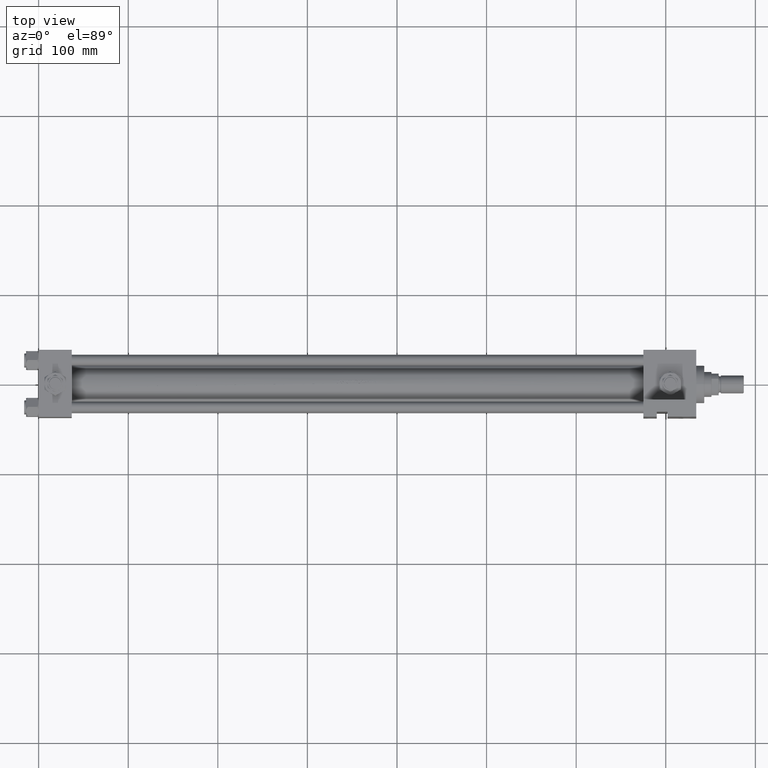
[diagram: clean part render]
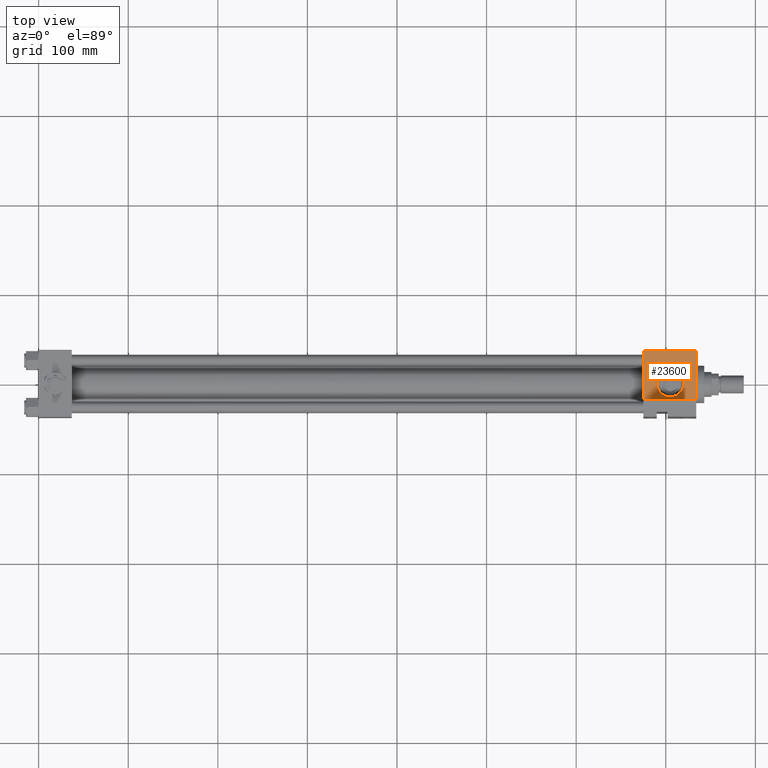
[diagram: same view with one face highlighted and labeled with its STEP entity id]
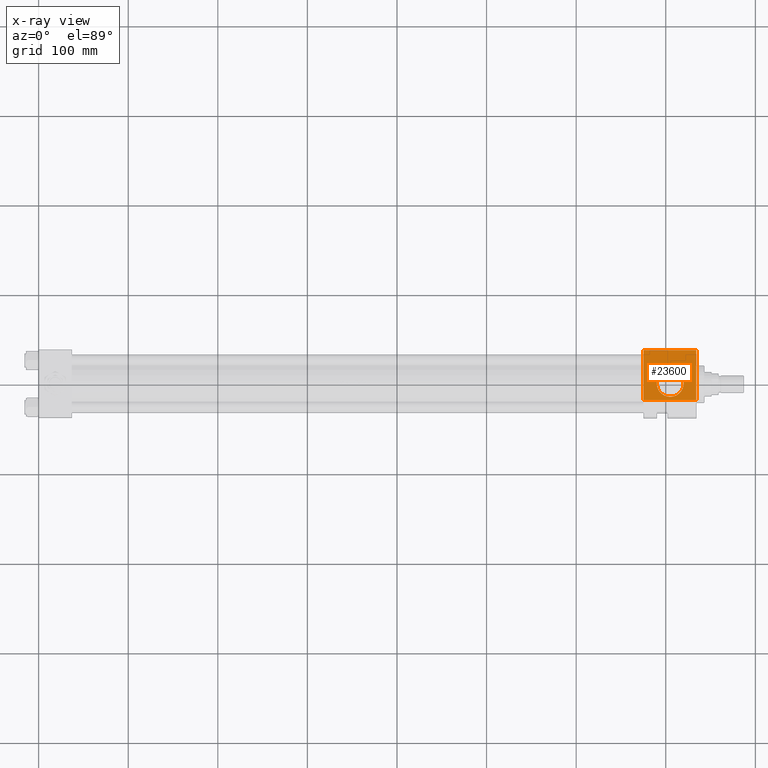
[diagram: x-ray of the same camera — body ghosted, the highlighted face saturated]
A machine part, top view. The second image highlights one B-rep face of the part: STEP entity #23600.
The next image is the same camera in x-ray: the body ghosted, the highlighted face saturated — about 0% of this face is hidden behind the body in this view.
In plain terms, the highlighted planar face has unit normal (0, -0, -1).
Its self-contained STEP definition (entity closure, byte-faithful):
#302 = ORIENTED_EDGE ( 'NONE', *, *, #46928, .F. ) ;
#2561 = PLANE ( 'NONE',  #3971 ) ;
#3924 = VERTEX_POINT ( 'NONE', #33499 ) ;
#3971 = AXIS2_PLACEMENT_3D ( 'NONE', #6862, #48476, #10191 ) ;
#4580 = AXIS2_PLACEMENT_3D ( 'NONE', #14339, #49070, #29782 ) ;
#4784 = VERTEX_POINT ( 'NONE', #9200 ) ;
#5316 = CIRCLE ( 'NONE', #49847, 15.00000000000002487 ) ;
#6278 = ORIENTED_EDGE ( 'NONE', *, *, #42126, .T. ) ;
#6349 = EDGE_LOOP ( 'NONE', ( #302, #40586, #6278, #32018 ) ) ;
#6391 = DIRECTION ( 'NONE',  ( 1.000000000000000000, -1.176083712526650181E-16, 0.000000000000000000 ) ) ;
#6862 = CARTESIAN_POINT ( 'NONE',  ( 734.0000000000000000, -37.50000000000000000, 37.49999999999997868 ) ) ;
#7649 = CARTESIAN_POINT ( 'NONE',  ( 675.0000000000000000, -37.50000000000000000, 36.99999999999980815 ) ) ;
#9200 = CARTESIAN_POINT ( 'NONE',  ( 705.0000000000001137, -37.50000000000000000, -15.00000000000002132 ) ) ;
#10191 = DIRECTION ( 'NONE',  ( 0.000000000000000000, 9.251858538542972814E-17, 1.000000000000000000 ) ) ;
#10271 = CIRCLE ( 'NONE', #4580, 15.00000000000002487 ) ;
#11638 = EDGE_CURVE ( 'NONE', #4784, #41572, #5316, .T. ) ;
#11934 = DIRECTION ( 'NONE',  ( -1.000000000000000000, 0.000000000000000000, 0.000000000000000000 ) ) ;
#13768 = CARTESIAN_POINT ( 'NONE',  ( 675.0000000000000000, -37.50000000000000000, -18.50000000000000000 ) ) ;
#13863 = EDGE_CURVE ( 'NONE', #41572, #4784, #10271, .T. ) ;
#14141 = VERTEX_POINT ( 'NONE', #7649 ) ;
#14339 = CARTESIAN_POINT ( 'NONE',  ( 705.0000000000001137, -37.50000000000000000, 3.469446951953615767E-15 ) ) ;
#17055 = LINE ( 'NONE', #39606, #40272 ) ;
#17672 = EDGE_LOOP ( 'NONE', ( #33220, #46630 ) ) ;
#21058 = EDGE_CURVE ( 'NONE', #3924, #27090, #33017, .T. ) ;
#21339 = CARTESIAN_POINT ( 'NONE',  ( 675.0000000000000000, -37.50000000000000000, 37.49999999999997868 ) ) ;
#22581 = LINE ( 'NONE', #30682, #38108 ) ;
#23443 = CARTESIAN_POINT ( 'NONE',  ( 734.0000000000000000, -37.50000000000000711, -18.50000000000000355 ) ) ;
#23600 = ADVANCED_FACE ( 'NONE', ( #44911, #49216 ), #2561, .F. ) ;
#23809 = EDGE_CURVE ( 'NONE', #40382, #14141, #22581, .T. ) ;
#24313 = CARTESIAN_POINT ( 'NONE',  ( 705.0000000000001137, -37.50000000000000000, 15.00000000000002842 ) ) ;
#24640 = DIRECTION ( 'NONE',  ( 0.000000000000000000, -9.251858538542972814E-17, -1.000000000000000000 ) ) ;
#26074 = CARTESIAN_POINT ( 'NONE',  ( 705.0000000000001137, -37.50000000000000000, 3.469446951953615767E-15 ) ) ;
#26422 = CARTESIAN_POINT ( 'NONE',  ( 734.0000000000000000, -37.50000000000000000, 36.99999999999980815 ) ) ;
#27090 = VERTEX_POINT ( 'NONE', #23443 ) ;
#27120 = VECTOR ( 'NONE', #44912, 1000.000000000000000 ) ;
#29437 = LINE ( 'NONE', #21339, #27120 ) ;
#29782 = DIRECTION ( 'NONE',  ( 0.000000000000000000, 0.000000000000000000, -1.000000000000000000 ) ) ;
#30682 = CARTESIAN_POINT ( 'NONE',  ( 734.0000000000000000, -37.50000000000000000, 36.99999999999980815 ) ) ;
#32018 = ORIENTED_EDGE ( 'NONE', *, *, #21058, .T. ) ;
#33017 = LINE ( 'NONE', #13768, #33966 ) ;
#33220 = ORIENTED_EDGE ( 'NONE', *, *, #11638, .F. ) ;
#33499 = CARTESIAN_POINT ( 'NONE',  ( 675.0000000000000000, -37.50000000000000000, -18.50000000000000000 ) ) ;
#33966 = VECTOR ( 'NONE', #6391, 1000.000000000000000 ) ;
#34437 = DIRECTION ( 'NONE',  ( 0.000000000000000000, -1.000000000000000000, -8.673617379884036705E-17 ) ) ;
#38108 = VECTOR ( 'NONE', #11934, 1000.000000000000000 ) ;
#39606 = CARTESIAN_POINT ( 'NONE',  ( 734.0000000000000000, -37.50000000000000000, 37.49999999999997868 ) ) ;
#40272 = VECTOR ( 'NONE', #24640, 1000.000000000000000 ) ;
#40382 = VERTEX_POINT ( 'NONE', #26422 ) ;
#40586 = ORIENTED_EDGE ( 'NONE', *, *, #23809, .T. ) ;
#41549 = DIRECTION ( 'NONE',  ( 0.000000000000000000, 0.000000000000000000, -1.000000000000000000 ) ) ;
#41572 = VERTEX_POINT ( 'NONE', #24313 ) ;
#42126 = EDGE_CURVE ( 'NONE', #14141, #3924, #29437, .T. ) ;
#44911 = FACE_BOUND ( 'NONE', #17672, .T. ) ;
#44912 = DIRECTION ( 'NONE',  ( 0.000000000000000000, -9.251858538542972814E-17, -1.000000000000000000 ) ) ;
#46630 = ORIENTED_EDGE ( 'NONE', *, *, #13863, .F. ) ;
#46928 = EDGE_CURVE ( 'NONE', #40382, #27090, #17055, .T. ) ;
#48476 = DIRECTION ( 'NONE',  ( 0.000000000000000000, 1.000000000000000000, -9.251858538542972814E-17 ) ) ;
#49070 = DIRECTION ( 'NONE',  ( 0.000000000000000000, -1.000000000000000000, -8.673617379884036705E-17 ) ) ;
#49216 = FACE_OUTER_BOUND ( 'NONE', #6349, .T. ) ;
#49847 = AXIS2_PLACEMENT_3D ( 'NONE', #26074, #34437, #41549 ) ;